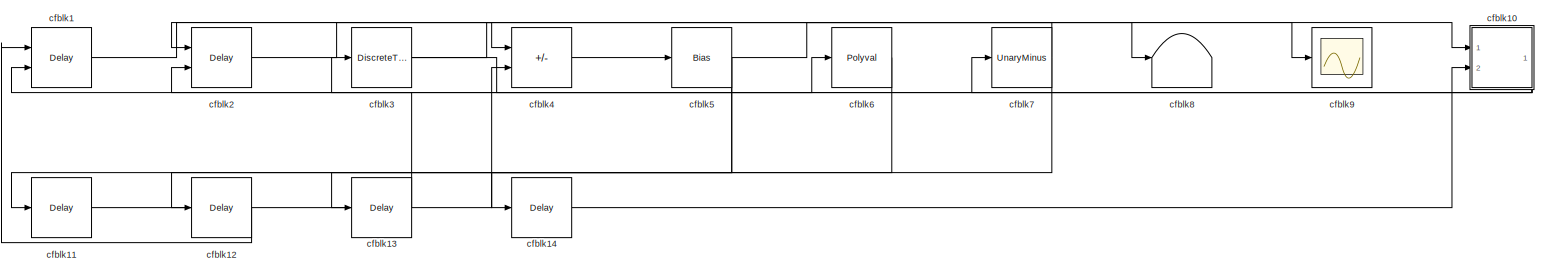
[diagram: root canvas - part 1/1, most of the canvas]
MODEL slx_3fe5d0154b61
KIND model
CONFIG AbsTol = auto
CONFIG EnableMultiTasking = off
CONFIG FixedStep = auto
CONFIG MaxStep = auto
CONFIG MinStep = auto
CONFIG RelTol = 1e-3
CONFIG SampleTimeConstraint = Unconstrained
CONFIG SolverName = VariableStepAuto
CONFIG StartTime = 0.0
CONFIG StopTime = 10.0
BLOCK [Delay] cfblk1
  InputPortMap = u0,e6
  Ports = [2, 1]
  SampleTime = 1
  ShowEnablePort = on
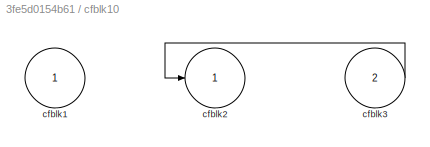
BLOCK [SubSystem] cfblk10
  Ports = [2, 1]
  RequestExecContextInheritance = off
BLOCK [Inport] cfblk10/cfblk1
BLOCK [Outport] cfblk10/cfblk2
BLOCK [Inport] cfblk10/cfblk3
  Port = 2
BLOCK [Delay] cfblk11
  InputPortMap = u0
  Ports = [1, 1]
  SampleTime = 1
BLOCK [Delay] cfblk12
  InputPortMap = u0
  Ports = [1, 1]
  SampleTime = 1
BLOCK [Delay] cfblk13
  InputPortMap = u0
  Ports = [1, 1]
  SampleTime = 1
BLOCK [Delay] cfblk14
  InputPortMap = u0
  Ports = [1, 1]
  SampleTime = 1
BLOCK [Delay] cfblk2
  InputPortMap = u0,e6
  Ports = [2, 1]
  SampleTime = 1
  ShowEnablePort = on
BLOCK [DiscreteTransferFcn] cfblk3
  InputPortMap = u0
  Ports = [1, 1]
  SampleTime = 1
BLOCK [Sum] cfblk4
  IconShape = rectangular
  Inputs = --
  Ports = [2, 1]
BLOCK [Bias] cfblk5
  Bias = [-338745011.283490]
  SaturateOnIntegerOverflow = off
BLOCK [Polyval] cfblk6
  Coefs = [ +2.081618890e-019, -1.441693666e-014, +4.719686976e-010, -8.536869453e-006, +1.621573104e-001, -8.087801117e+001 ]
BLOCK [UnaryMinus] cfblk7
BLOCK [Terminator] cfblk8
BLOCK [Scope] cfblk9
  Floating = off
  NumInputPorts = 1
  Ports = [1]
LINE cfblk10/cfblk3:1 -> cfblk10/cfblk2:1
NET cfblk10:1 -> cfblk1:2, cfblk2:2, cfblk7:1
LINE cfblk11:1 -> cfblk4:2
LINE cfblk12:1 -> cfblk1:1
LINE cfblk13:1 -> cfblk3:1
LINE cfblk14:1 -> cfblk10:2
LINE cfblk1:1 -> cfblk4:1
LINE cfblk2:1 -> cfblk9:1
NET cfblk3:1 -> cfblk10:1, cfblk6:1
LINE cfblk4:1 -> cfblk5:1
NET cfblk5:1 -> cfblk11:1, cfblk12:1, cfblk8:1
LINE cfblk6:1 -> cfblk13:1
NET cfblk7:1 -> cfblk14:1, cfblk2:1
note: NET lines group one-source signal fan-out (src -> all destinations, sorted); 1:1 wires keep LINE
